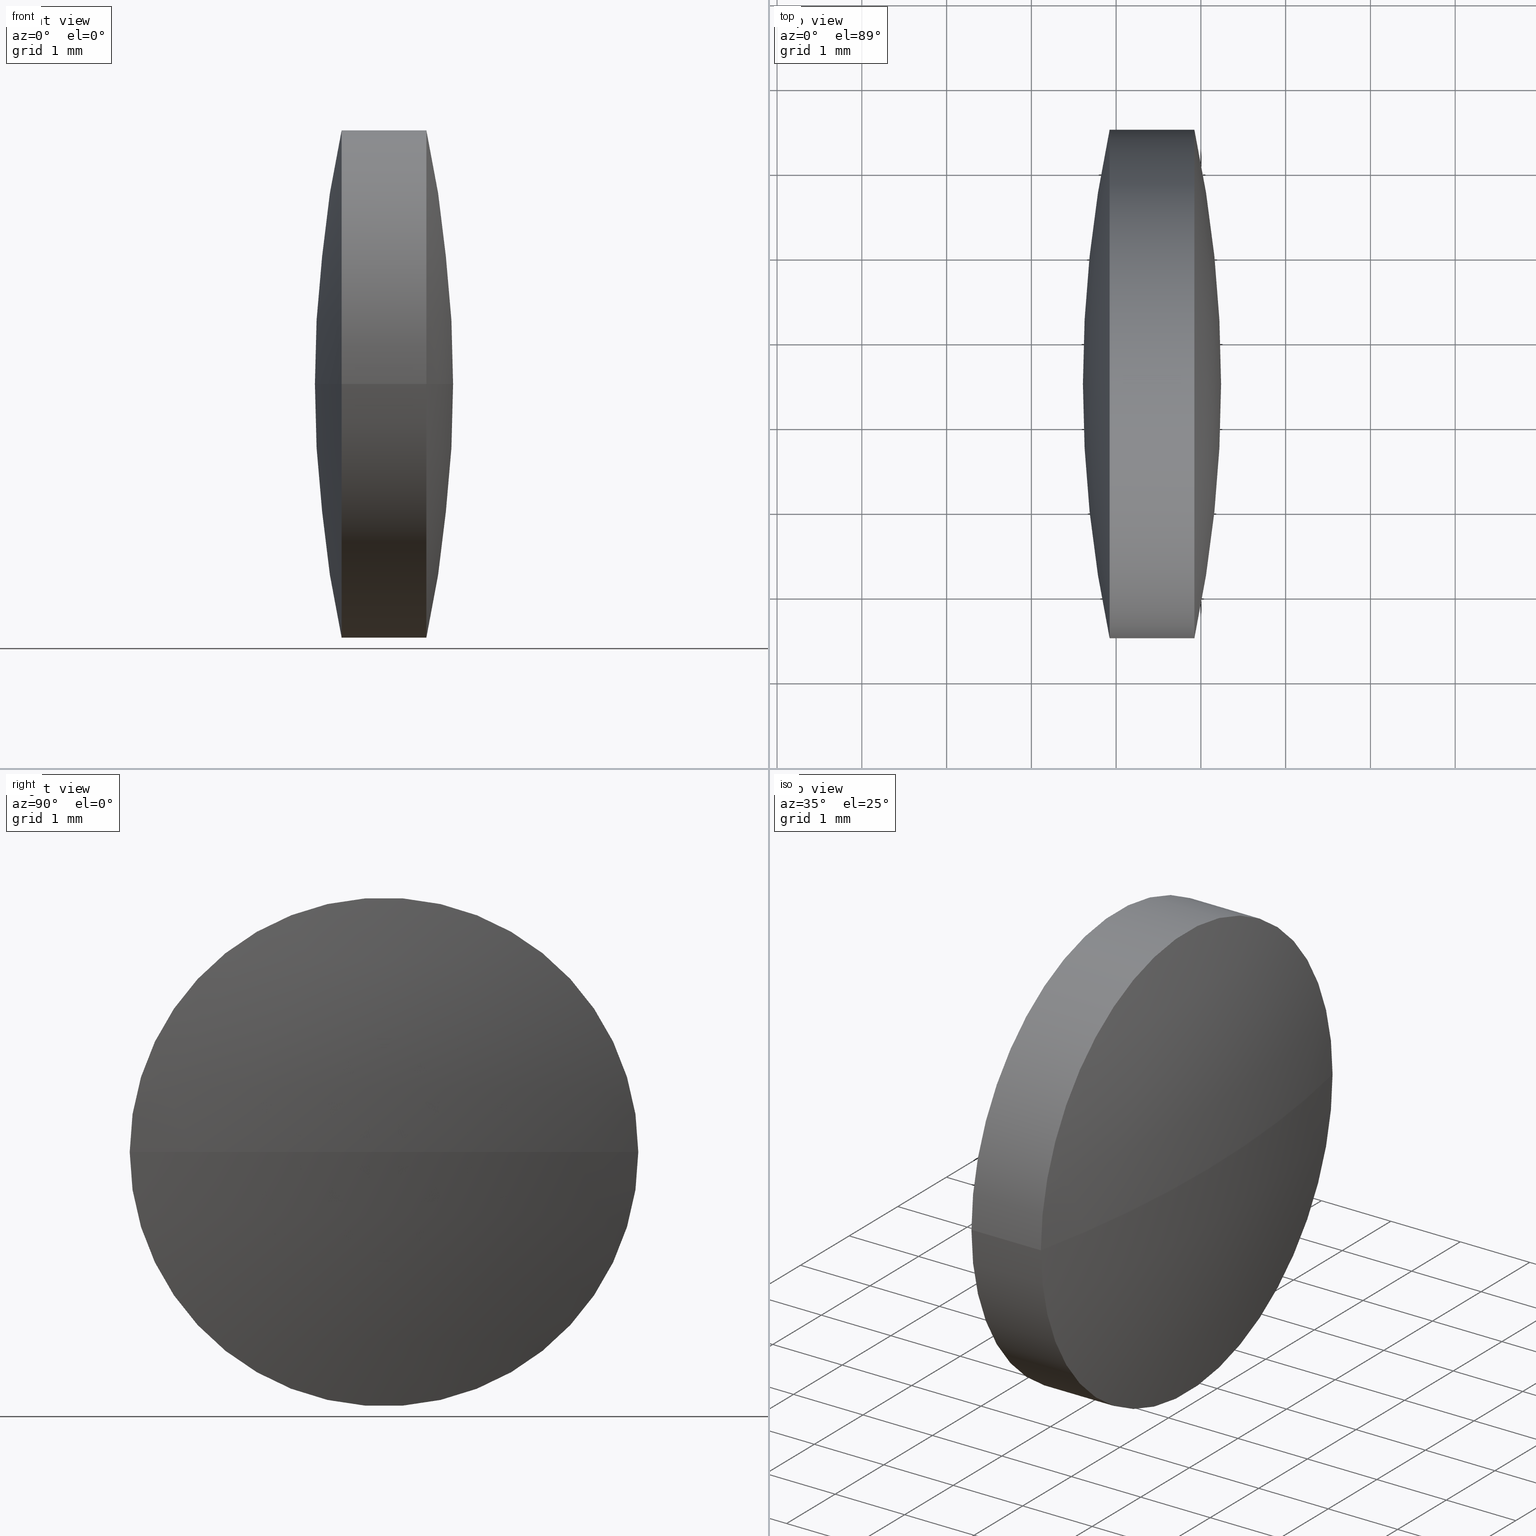
[diagram: canonical four-view strip — front | top / right | iso, engineering-drawing reading convention]
A machine part, canonical four-view strip (front | top / right | iso — engineering-drawing reading convention). The complete STEP part file that produces these views, byte-faithful:
ISO-10303-21;
HEADER;
FILE_DESCRIPTION (( 'STEP AP203' ),
    '1' );
FILE_NAME ('110091.STEP',
    '2019-07-04T02:34:23',
    ( '' ),
    ( '' ),
    'SwSTEP 2.0',
    'SolidWorks 2016',
    '' );
FILE_SCHEMA (( 'CONFIG_CONTROL_DESIGN' ));
ENDSEC;

DATA;
#1 = ORIENTED_EDGE ( 'NONE', *, *, #174, .F. ) ;
#2 = DIRECTION ( 'NONE',  ( 2.402096781192441300E-015, -1.000000000000000000, 0.0000000000000000000 ) ) ;
#3 = EDGE_LOOP ( 'NONE', ( #146, #80, #222 ) ) ;
#4 = PERSON_AND_ORGANIZATION_ROLE ( 'creator' ) ;
#5 = DATE_TIME_ROLE ( 'creation_date' ) ;
#6 = PRODUCT_DEFINITION_FORMATION_WITH_SPECIFIED_SOURCE ( '�κ�', '', #232, .NOT_KNOWN. ) ;
#7 = SPHERICAL_SURFACE ( 'NONE', #13, 14.44341035348024200 ) ;
#8 = EDGE_CURVE ( 'NONE', #186, #206, #25, .T. ) ;
#9 = LOCAL_TIME ( 10, 34, 23.00000000000000000, #294 ) ;
#10 = EDGE_LOOP ( 'NONE', ( #109, #32, #71, #52 ) ) ;
#11 = APPROVAL_STATUS ( 'not_yet_approved' ) ;
#12 = FACE_OUTER_BOUND ( 'NONE', #54, .T. ) ;
#13 = AXIS2_PLACEMENT_3D ( 'NONE', #117, #83, #231 ) ;
#14 = FACE_OUTER_BOUND ( 'NONE', #10, .T. ) ;
#15 = CARTESIAN_POINT ( 'NONE',  ( 6.794780369218582200, 11.48412118657908800, 0.0000000000000000000 ) ) ;
#16 = ADVANCED_FACE ( 'NONE', ( #58 ), #281, .T. ) ;
#17 = DATE_AND_TIME ( #203, #48 ) ;
#18 = APPROVAL_STATUS ( 'not_yet_approved' ) ;
#19 = EDGE_CURVE ( 'NONE', #87, #206, #182, .T. ) ;
#20 = CIRCLE ( 'NONE', #131, 2.999999999999997300 ) ;
#21 = DIRECTION ( 'NONE',  ( 0.0000000000000000000, 0.0000000000000000000, 1.000000000000000000 ) ) ;
#22 = DIRECTION ( 'NONE',  ( 0.0000000000000000000, 1.000000000000000000, 1.224646799147353200E-016 ) ) ;
#23 = AXIS2_PLACEMENT_3D ( 'NONE', #44, #96, #94 ) ;
#24 = LOCAL_TIME ( 10, 34, 23.00000000000000000, #74 ) ;
#25 = CIRCLE ( 'NONE', #101, 14.44341035348010600 ) ;
#26 = APPROVAL_ROLE ( '' ) ;
#27 = COORDINATED_UNIVERSAL_TIME_OFFSET ( 8, 0, .AHEAD. ) ;
#28 = PERSON_AND_ORGANIZATION_ROLE ( 'creator' ) ;
#29 = AXIS2_PLACEMENT_3D ( 'NONE', #84, #62, #90 ) ;
#30 = DESIGN_CONTEXT ( 'detailed design', #214, 'design' ) ;
#31 = PERSON_AND_ORGANIZATION ( #302, #269 ) ;
#32 = ORIENTED_EDGE ( 'NONE', *, *, #50, .T. ) ;
#33 = SECURITY_CLASSIFICATION ( '', '', #262 ) ;
#34 = DIRECTION ( 'NONE',  ( 2.916063966543157700E-031, -1.224646799147353200E-016, 1.000000000000000000 ) ) ;
#35 = LOCAL_TIME ( 10, 34, 23.00000000000000000, #295 ) ;
#36 = ORIENTED_EDGE ( 'NONE', *, *, #223, .T. ) ;
#37 = CARTESIAN_POINT ( 'NONE',  ( 6.794780369218582200, 11.48412118657908800, 0.0000000000000000000 ) ) ;
#38 = APPROVAL ( #147, 'δָ��' ) ;
#39 = CARTESIAN_POINT ( 'NONE',  ( 20.92319509412727300, 8.484121186579120200, 0.0000000000000000000 ) ) ;
#40 = AXIS2_PLACEMENT_3D ( 'NONE', #233, #188, #140 ) ;
#41 = DIRECTION ( 'NONE',  ( -0.0000000000000000000, 0.0000000000000000000, 1.000000000000000000 ) ) ;
#42 = PERSON_AND_ORGANIZATION ( #302, #269 ) ;
#43 = CC_DESIGN_APPROVAL ( #38, ( #33 ) ) ;
#44 = CARTESIAN_POINT ( 'NONE',  ( 19.92319566555584100, 11.48412118657908300, 0.0000000000000000000 ) ) ;
#45 = ADVANCED_BREP_SHAPE_REPRESENTATION ( '110091', ( #277, #72 ), #274 ) ;
#46 = DIRECTION ( 'NONE',  ( 1.000000000000000000, 0.0000000000000000000, 0.0000000000000000000 ) ) ;
#47 = COORDINATED_UNIVERSAL_TIME_OFFSET ( 8, 0, .AHEAD. ) ;
#48 = LOCAL_TIME ( 10, 34, 23.00000000000000000, #82 ) ;
#49 = CARTESIAN_POINT ( 'NONE',  ( 20.92319509412725900, 14.48412118657908800, 3.673940397442015500E-016 ) ) ;
#50 = EDGE_CURVE ( 'NONE', #206, #87, #20, .T. ) ;
#51 = CC_DESIGN_PERSON_AND_ORGANIZATION_ASSIGNMENT ( #298, #221, ( #154 ) ) ;
#52 = ORIENTED_EDGE ( 'NONE', *, *, #230, .F. ) ;
#53 = COORDINATED_UNIVERSAL_TIME_OFFSET ( 8, 0, .AHEAD. ) ;
#54 = EDGE_LOOP ( 'NONE', ( #137, #265, #244 ) ) ;
#55 = ORIENTED_EDGE ( 'NONE', *, *, #289, .F. ) ;
#56 = SECURITY_CLASSIFICATION_LEVEL ( 'unclassified' ) ;
#57 = LOCAL_TIME ( 10, 34, 23.00000000000000000, #47 ) ;
#58 = FACE_OUTER_BOUND ( 'NONE', #100, .T. ) ;
#59 = ADVANCED_FACE ( 'NONE', ( #219 ), #273, .T. ) ;
#60 = CARTESIAN_POINT ( 'NONE',  ( 6.794780369218582200, 11.48412118657908800, 0.0000000000000000000 ) ) ;
#61 = PERSON_AND_ORGANIZATION ( #302, #269 ) ;
#62 = DIRECTION ( 'NONE',  ( -1.000000000000000000, -2.381146930342230200E-015, -0.0000000000000000000 ) ) ;
#63 = DIRECTION ( 'NONE',  ( -0.0000000000000000000, 0.0000000000000000000, 1.000000000000000000 ) ) ;
#64 = CC_DESIGN_DATE_AND_TIME_ASSIGNMENT ( #270, #198, ( #154 ) ) ;
#65 = CARTESIAN_POINT ( 'NONE',  ( 34.05161039046465300, 11.48412118657908600, 0.0000000000000000000 ) ) ;
#66 = APPROVAL ( #279, 'δָ��' ) ;
#67 = CALENDAR_DATE ( 2019, 4, 7 ) ;
#68 = APPLICATION_PROTOCOL_DEFINITION ( 'international standard', 'config_control_design', 1994, #214 ) ;
#69 =( LENGTH_UNIT ( ) NAMED_UNIT ( * ) SI_UNIT ( .MILLI., .METRE. ) );
#70 = FACE_OUTER_BOUND ( 'NONE', #250, .T. ) ;
#71 = ORIENTED_EDGE ( 'NONE', *, *, #289, .T. ) ;
#72 = AXIS2_PLACEMENT_3D ( 'NONE', #144, #21, #46 ) ;
#73 = APPROVAL_ROLE ( '' ) ;
#74 = COORDINATED_UNIVERSAL_TIME_OFFSET ( 8, 0, .AHEAD. ) ;
#75 = APPLICATION_PROTOCOL_DEFINITION ( 'international standard', 'config_control_design', 1994, #77 ) ;
#76 = PERSON_AND_ORGANIZATION ( #302, #269 ) ;
#77 = APPLICATION_CONTEXT ( 'configuration controlled 3d designs of mechanical parts and assemblies' ) ;
#78 = APPROVAL ( #197, 'δָ��' ) ;
#79 = FACE_OUTER_BOUND ( 'NONE', #3, .T. ) ;
#80 = ORIENTED_EDGE ( 'NONE', *, *, #174, .T. ) ;
#81 = COORDINATED_UNIVERSAL_TIME_OFFSET ( 8, 0, .AHEAD. ) ;
#82 = COORDINATED_UNIVERSAL_TIME_OFFSET ( 8, 0, .AHEAD. ) ;
#83 = DIRECTION ( 'NONE',  ( -0.0000000000000000000, 0.0000000000000000000, -1.000000000000000000 ) ) ;
#84 = CARTESIAN_POINT ( 'NONE',  ( 19.32237368753928700, 11.48412118657908100, 0.0000000000000000000 ) ) ;
#85 = DIRECTION ( 'NONE',  ( -1.000000000000000000, -2.381146930342230200E-015, -0.0000000000000000000 ) ) ;
#86 = COORDINATED_UNIVERSAL_TIME_OFFSET ( 8, 0, .AHEAD. ) ;
#87 = VERTEX_POINT ( 'NONE', #39 ) ;
#88 = CARTESIAN_POINT ( 'NONE',  ( 19.32237368753928000, 14.48412118657908100, 3.673940397442057900E-016 ) ) ;
#89 = PERSON_AND_ORGANIZATION_ROLE ( 'classification_officer' ) ;
#90 = DIRECTION ( 'NONE',  ( 2.312964634635743400E-015, -1.000000000000000000, 0.0000000000000000000 ) ) ;
#91 = CC_DESIGN_PERSON_AND_ORGANIZATION_ASSIGNMENT ( #142, #95, ( #260 ) ) ;
#92 = DATE_AND_TIME ( #172, #57 ) ;
#93 = CARTESIAN_POINT ( 'NONE',  ( 19.32237368753929400, 8.484121186579082900, 0.0000000000000000000 ) ) ;
#94 = DIRECTION ( 'NONE',  ( 2.312964634635743400E-015, -1.000000000000000000, 0.0000000000000000000 ) ) ;
#95 = PERSON_AND_ORGANIZATION_ROLE ( 'creator' ) ;
#96 = DIRECTION ( 'NONE',  ( -1.000000000000000000, -2.381146930342230200E-015, -0.0000000000000000000 ) ) ;
#97 = PRODUCT_DEFINITION_SHAPE ( 'NONE', 'NONE',  #179 ) ;
#98 = DATE_AND_TIME ( #246, #267 ) ;
#99 = VECTOR ( 'NONE', #171, 1000.000000000000000 ) ;
#100 = EDGE_LOOP ( 'NONE', ( #104, #191, #275 ) ) ;
#101 = AXIS2_PLACEMENT_3D ( 'NONE', #15, #34, #303 ) ;
#102 = PRODUCT_RELATED_PRODUCT_CATEGORY ( 'detail', '', ( #278 ) ) ;
#103 = APPROVAL_DATE_TIME ( #286, #78 ) ;
#104 = ORIENTED_EDGE ( 'NONE', *, *, #8, .F. ) ;
#105 = EDGE_CURVE ( 'NONE', #206, #301, #249, .T. ) ;
#106 = APPROVAL_STATUS ( 'not_yet_approved' ) ;
#107 = PERSON_AND_ORGANIZATION ( #302, #269 ) ;
#108 = APPROVAL_DATE_TIME ( #17, #66 ) ;
#109 = ORIENTED_EDGE ( 'NONE', *, *, #105, .F. ) ;
#110 = COORDINATED_UNIVERSAL_TIME_OFFSET ( 8, 0, .AHEAD. ) ;
#111 = CC_DESIGN_DATE_AND_TIME_ASSIGNMENT ( #196, #5, ( #260 ) ) ;
#112 = CALENDAR_DATE ( 2019, 4, 7 ) ;
#113 = UNCERTAINTY_MEASURE_WITH_UNIT (LENGTH_MEASURE( 1.000000000000000100E-005 ), #69, 'distance_accuracy_value', 'NONE');
#114 = CC_DESIGN_DATE_AND_TIME_ASSIGNMENT ( #92, #243, ( #179 ) ) ;
#115 = ADVANCED_FACE ( 'NONE', ( #79 ), #7, .T. ) ;
#116 = AXIS2_PLACEMENT_3D ( 'NONE', #65, #209, #189 ) ;
#117 = CARTESIAN_POINT ( 'NONE',  ( 34.05161039046465300, 11.48412118657908600, 0.0000000000000000000 ) ) ;
#118 = APPROVAL_DATE_TIME ( #127, #126 ) ;
#119 = VERTEX_POINT ( 'NONE', #226 ) ;
#120 =( NAMED_UNIT ( * ) SI_UNIT ( $, .STERADIAN. ) SOLID_ANGLE_UNIT ( ) );
#121 = EDGE_CURVE ( 'NONE', #186, #87, #175, .T. ) ;
#122 = CARTESIAN_POINT ( 'NONE',  ( 19.92319566555583400, 14.48412118657908500, 0.0000000000000000000 ) ) ;
#123 = APPROVAL_DATE_TIME ( #98, #38 ) ;
#124 = SPHERICAL_SURFACE ( 'NONE', #207, 14.44341035348024200 ) ;
#125 = DIRECTION ( 'NONE',  ( -2.402096781192418800E-015, 1.000000000000000000, 0.0000000000000000000 ) ) ;
#126 = APPROVAL ( #106, 'δָ��' ) ;
#127 = DATE_AND_TIME ( #297, #185 ) ;
#128 = APPROVAL ( #18, 'δָ��' ) ;
#129 = CALENDAR_DATE ( 2019, 4, 7 ) ;
#130 = CC_DESIGN_PERSON_AND_ORGANIZATION_ASSIGNMENT ( #164, #199, ( #148 ) ) ;
#131 = AXIS2_PLACEMENT_3D ( 'NONE', #253, #161, #224 ) ;
#132 = CIRCLE ( 'NONE', #116, 14.44341035348024200 ) ;
#133 = ADVANCED_FACE ( 'NONE', ( #14 ), #205, .T. ) ;
#134 = DIRECTION ( 'NONE',  ( -1.000000000000000000, 0.0000000000000000000, 0.0000000000000000000 ) ) ;
#135 = LOCAL_TIME ( 10, 34, 23.00000000000000000, #86 ) ;
#136 = CC_DESIGN_SECURITY_CLASSIFICATION ( #154, ( #148 ) ) ;
#137 = ORIENTED_EDGE ( 'NONE', *, *, #121, .F. ) ;
#138 = AXIS2_PLACEMENT_3D ( 'NONE', #252, #254, #184 ) ;
#139 = DIRECTION ( 'NONE',  ( 1.000000000000000000, 0.0000000000000000000, 0.0000000000000000000 ) ) ;
#140 = DIRECTION ( 'NONE',  ( 2.312964634635743400E-015, -1.000000000000000000, 0.0000000000000000000 ) ) ;
#141 = APPROVAL_DATE_TIME ( #202, #256 ) ;
#142 = PERSON_AND_ORGANIZATION ( #302, #269 ) ;
#143 = PERSON_AND_ORGANIZATION_ROLE ( 'design_owner' ) ;
#144 = CARTESIAN_POINT ( 'NONE',  ( 0.0000000000000000000, 0.0000000000000000000, 0.0000000000000000000 ) ) ;
#145 = CIRCLE ( 'NONE', #177, 14.44341035348024100 ) ;
#146 = ORIENTED_EDGE ( 'NONE', *, *, #230, .T. ) ;
#147 = APPROVAL_STATUS ( 'not_yet_approved' ) ;
#148 = PRODUCT_DEFINITION_FORMATION_WITH_SPECIFIED_SOURCE ( '�κ�', '', #278, .NOT_KNOWN. ) ;
#149 = PERSON_AND_ORGANIZATION ( #302, #269 ) ;
#150 = APPROVAL_PERSON_ORGANIZATION ( #227, #66, #237 ) ;
#151 = AXIS2_PLACEMENT_3D ( 'NONE', #187, #41, #2 ) ;
#152 = MECHANICAL_CONTEXT ( 'NONE', #213, 'mechanical' ) ;
#153 = ORIENTED_EDGE ( 'NONE', *, *, #234, .T. ) ;
#154 = SECURITY_CLASSIFICATION ( '', '', #56 ) ;
#155 = LOCAL_TIME ( 10, 34, 23.00000000000000000, #27 ) ;
#156 = SHAPE_DEFINITION_REPRESENTATION ( #97, #45 ) ;
#157 = ADVANCED_FACE ( 'NONE', ( #12 ), #255, .T. ) ;
#158 = DIRECTION ( 'NONE',  ( 2.402096781192441300E-015, -1.000000000000000000, 0.0000000000000000000 ) ) ;
#159 = APPROVAL_DATE_TIME ( #220, #128 ) ;
#160 = ORIENTED_EDGE ( 'NONE', *, *, #19, .T. ) ;
#161 = DIRECTION ( 'NONE',  ( -1.000000000000000000, -2.381146930342230200E-015, -0.0000000000000000000 ) ) ;
#162 = AXIS2_PLACEMENT_3D ( 'NONE', #236, #283, #139 ) ;
#163 = DIRECTION ( 'NONE',  ( 2.312964634635745000E-015, -1.000000000000000000, 0.0000000000000000000 ) ) ;
#164 = PERSON_AND_ORGANIZATION ( #302, #269 ) ;
#165 = CC_DESIGN_SECURITY_CLASSIFICATION ( #33, ( #6 ) ) ;
#166 = DIRECTION ( 'NONE',  ( -2.916063966543157700E-031, 1.224646799147353200E-016, -1.000000000000000000 ) ) ;
#167 = CARTESIAN_POINT ( 'NONE',  ( 19.60820003698440700, 11.48412118657905400, 0.0000000000000000000 ) ) ;
#168 = DIRECTION ( 'NONE',  ( -0.0000000000000000000, 0.0000000000000000000, -1.000000000000000000 ) ) ;
#169 = APPROVAL_PERSON_ORGANIZATION ( #181, #38, #264 ) ;
#170 = LINE ( 'NONE', #93, #99 ) ;
#171 = DIRECTION ( 'NONE',  ( -1.000000000000000000, -2.381146930342230200E-015, -0.0000000000000000000 ) ) ;
#172 = CALENDAR_DATE ( 2019, 4, 7 ) ;
#173 = EDGE_LOOP ( 'NONE', ( #160, #239, #216, #55 ) ) ;
#174 = EDGE_CURVE ( 'NONE', #119, #229, #145, .T. ) ;
#175 = CIRCLE ( 'NONE', #245, 14.44341035348010600 ) ;
#176 = CC_DESIGN_PERSON_AND_ORGANIZATION_ASSIGNMENT ( #31, #290, ( #148 ) ) ;
#177 = AXIS2_PLACEMENT_3D ( 'NONE', #190, #166, #22 ) ;
#178 = CALENDAR_DATE ( 2019, 4, 7 ) ;
#179 = PRODUCT_DEFINITION ( 'δ֪', '', #148, #228 ) ;
#180 = CC_DESIGN_PERSON_AND_ORGANIZATION_ASSIGNMENT ( #61, #143, ( #232 ) ) ;
#181 = PERSON_AND_ORGANIZATION ( #302, #269 ) ;
#182 = CIRCLE ( 'NONE', #305, 2.999999999999997300 ) ;
#183 = CARTESIAN_POINT ( 'NONE',  ( 20.92319509412726600, 11.48412118657908500, 0.0000000000000000000 ) ) ;
#184 = DIRECTION ( 'NONE',  ( 2.312964634635743400E-015, -1.000000000000000000, 0.0000000000000000000 ) ) ;
#185 = LOCAL_TIME ( 10, 34, 23.00000000000000000, #53 ) ;
#186 = VERTEX_POINT ( 'NONE', #299 ) ;
#187 = CARTESIAN_POINT ( 'NONE',  ( 6.794780369218582200, 11.48412118657908800, 0.0000000000000000000 ) ) ;
#188 = DIRECTION ( 'NONE',  ( -1.000000000000000000, -2.381146930342230200E-015, -0.0000000000000000000 ) ) ;
#189 = DIRECTION ( 'NONE',  ( 1.000000000000000000, 0.0000000000000000000, 0.0000000000000000000 ) ) ;
#190 = CARTESIAN_POINT ( 'NONE',  ( 34.05161039046465300, 11.48412118657908600, 0.0000000000000000000 ) ) ;
#191 = ORIENTED_EDGE ( 'NONE', *, *, #121, .T. ) ;
#192 =( NAMED_UNIT ( * ) PLANE_ANGLE_UNIT ( ) SI_UNIT ( $, .RADIAN. ) );
#193 = APPLICATION_PROTOCOL_DEFINITION ( 'international standard', 'config_control_design', 1994, #213 ) ;
#194 = CC_DESIGN_APPROVAL ( #126, ( #154 ) ) ;
#195 = PERSON_AND_ORGANIZATION ( #302, #269 ) ;
#196 = DATE_AND_TIME ( #129, #135 ) ;
#197 = APPROVAL_STATUS ( 'not_yet_approved' ) ;
#198 = DATE_TIME_ROLE ( 'classification_date' ) ;
#199 = PERSON_AND_ORGANIZATION_ROLE ( 'design_supplier' ) ;
#200 = CLOSED_SHELL ( 'NONE', ( #59, #157, #115, #204, #16, #133 ) ) ;
#201 = CC_DESIGN_PERSON_AND_ORGANIZATION_ASSIGNMENT ( #149, #4, ( #6 ) ) ;
#202 = DATE_AND_TIME ( #178, #9 ) ;
#203 = CALENDAR_DATE ( 2019, 4, 7 ) ;
#204 = ADVANCED_FACE ( 'NONE', ( #70 ), #124, .T. ) ;
#205 = CYLINDRICAL_SURFACE ( 'NONE', #29, 2.999999999999999100 ) ;
#206 = VERTEX_POINT ( 'NONE', #49 ) ;
#207 = AXIS2_PLACEMENT_3D ( 'NONE', #288, #168, #125 ) ;
#208 = DIRECTION ( 'NONE',  ( -1.000000000000000000, -2.381146930342230200E-015, -0.0000000000000000000 ) ) ;
#209 = DIRECTION ( 'NONE',  ( -0.0000000000000000000, 0.0000000000000000000, 1.000000000000000000 ) ) ;
#210 = CC_DESIGN_DATE_AND_TIME_ASSIGNMENT ( #242, #235, ( #33 ) ) ;
#211 = PERSON_AND_ORGANIZATION ( #302, #269 ) ;
#212 = PERSON_AND_ORGANIZATION ( #302, #269 ) ;
#213 = APPLICATION_CONTEXT ( 'configuration controlled 3d designs of mechanical parts and assemblies' ) ;
#214 = APPLICATION_CONTEXT ( 'configuration controlled 3d designs of mechanical parts and assemblies' ) ;
#215 = CIRCLE ( 'NONE', #23, 2.999999999999999100 ) ;
#216 = ORIENTED_EDGE ( 'NONE', *, *, #234, .F. ) ;
#217 = LOCAL_TIME ( 10, 34, 23.00000000000000000, #110 ) ;
#218 = CC_DESIGN_PERSON_AND_ORGANIZATION_ASSIGNMENT ( #211, #240, ( #6 ) ) ;
#219 = FACE_OUTER_BOUND ( 'NONE', #173, .T. ) ;
#220 = DATE_AND_TIME ( #287, #35 ) ;
#221 = PERSON_AND_ORGANIZATION_ROLE ( 'classification_officer' ) ;
#222 = ORIENTED_EDGE ( 'NONE', *, *, #223, .F. ) ;
#223 = EDGE_CURVE ( 'NONE', #301, #229, #132, .T. ) ;
#224 = DIRECTION ( 'NONE',  ( 2.312964634635745000E-015, -1.000000000000000000, 0.0000000000000000000 ) ) ;
#225 = CALENDAR_DATE ( 2019, 4, 7 ) ;
#226 = CARTESIAN_POINT ( 'NONE',  ( 19.92319566555585200, 8.484121186579050900, -3.673940397442060400E-016 ) ) ;
#227 = PERSON_AND_ORGANIZATION ( #302, #269 ) ;
#228 = DESIGN_CONTEXT ( 'detailed design', #77, 'design' ) ;
#229 = VERTEX_POINT ( 'NONE', #167 ) ;
#230 = EDGE_CURVE ( 'NONE', #301, #119, #215, .T. ) ;
#231 = DIRECTION ( 'NONE',  ( -2.402096781192418800E-015, 1.000000000000000000, 0.0000000000000000000 ) ) ;
#232 = PRODUCT ( '110091', '110091', '', ( #284 ) ) ;
#233 = CARTESIAN_POINT ( 'NONE',  ( 19.92319566555584100, 11.48412118657908300, 0.0000000000000000000 ) ) ;
#234 = EDGE_CURVE ( 'NONE', #119, #301, #238, .T. ) ;
#235 = DATE_TIME_ROLE ( 'classification_date' ) ;
#236 = CARTESIAN_POINT ( 'NONE',  ( 0.0000000000000000000, 0.0000000000000000000, 0.0000000000000000000 ) ) ;
#237 = APPROVAL_ROLE ( '' ) ;
#238 = CIRCLE ( 'NONE', #40, 2.999999999999999100 ) ;
#239 = ORIENTED_EDGE ( 'NONE', *, *, #105, .T. ) ;
#240 = PERSON_AND_ORGANIZATION_ROLE ( 'design_supplier' ) ;
#241 = PERSON_AND_ORGANIZATION ( #302, #269 ) ;
#242 = DATE_AND_TIME ( #67, #217 ) ;
#243 = DATE_TIME_ROLE ( 'creation_date' ) ;
#244 = ORIENTED_EDGE ( 'NONE', *, *, #19, .F. ) ;
#245 = AXIS2_PLACEMENT_3D ( 'NONE', #60, #251, #134 ) ;
#246 = CALENDAR_DATE ( 2019, 4, 7 ) ;
#247 = PRODUCT_RELATED_PRODUCT_CATEGORY ( 'detail', '', ( #232 ) ) ;
#248 = CC_DESIGN_PERSON_AND_ORGANIZATION_ASSIGNMENT ( #212, #268, ( #278 ) ) ;
#249 = LINE ( 'NONE', #88, #300 ) ;
#250 = EDGE_LOOP ( 'NONE', ( #1, #153, #36 ) ) ;
#251 = DIRECTION ( 'NONE',  ( 0.0000000000000000000, 0.0000000000000000000, -1.000000000000000000 ) ) ;
#252 = CARTESIAN_POINT ( 'NONE',  ( 19.32237368753928700, 11.48412118657908100, 0.0000000000000000000 ) ) ;
#253 = CARTESIAN_POINT ( 'NONE',  ( 20.92319509412726600, 11.48412118657908500, 0.0000000000000000000 ) ) ;
#254 = DIRECTION ( 'NONE',  ( -1.000000000000000000, -2.381146930342230200E-015, -0.0000000000000000000 ) ) ;
#255 = SPHERICAL_SURFACE ( 'NONE', #151, 14.44341035348010600 ) ;
#256 = APPROVAL ( #11, 'δָ��' ) ;
#257 = APPROVAL_PERSON_ORGANIZATION ( #280, #78, #26 ) ;
#258 = APPROVAL_PERSON_ORGANIZATION ( #76, #128, #261 ) ;
#259 = APPLICATION_CONTEXT ( 'configuration controlled 3d designs of mechanical parts and assemblies' ) ;
#260 = PRODUCT_DEFINITION ( 'δ֪', '', #6, #30 ) ;
#261 = APPROVAL_ROLE ( '' ) ;
#262 = SECURITY_CLASSIFICATION_LEVEL ( 'unclassified' ) ;
#263 = AXIS2_PLACEMENT_3D ( 'NONE', #37, #63, #158 ) ;
#264 = APPROVAL_ROLE ( '' ) ;
#265 = ORIENTED_EDGE ( 'NONE', *, *, #8, .T. ) ;
#266 = CC_DESIGN_APPROVAL ( #256, ( #148 ) ) ;
#267 = LOCAL_TIME ( 10, 34, 23.00000000000000000, #81 ) ;
#268 = PERSON_AND_ORGANIZATION_ROLE ( 'design_owner' ) ;
#269 = ORGANIZATION ( 'δָ��', 'δָ��', '' ) ;
#270 = DATE_AND_TIME ( #225, #24 ) ;
#271 = CC_DESIGN_PERSON_AND_ORGANIZATION_ASSIGNMENT ( #195, #89, ( #33 ) ) ;
#272 = APPROVAL_PERSON_ORGANIZATION ( #107, #126, #73 ) ;
#273 = CYLINDRICAL_SURFACE ( 'NONE', #138, 2.999999999999999100 ) ;
#274 =( GEOMETRIC_REPRESENTATION_CONTEXT ( 3 ) GLOBAL_UNCERTAINTY_ASSIGNED_CONTEXT ( ( #113 ) ) GLOBAL_UNIT_ASSIGNED_CONTEXT ( ( #69, #192, #120 ) ) REPRESENTATION_CONTEXT ( 'NONE', 'WORKASPACE' ) );
#275 = ORIENTED_EDGE ( 'NONE', *, *, #50, .F. ) ;
#276 = PRODUCT_DEFINITION_SHAPE ( 'NONE', 'NONE',  #260 ) ;
#277 = MANIFOLD_SOLID_BREP ( '��ת1', #200 ) ;
#278 = PRODUCT ( '110091', '110091', '', ( #152 ) ) ;
#279 = APPROVAL_STATUS ( 'not_yet_approved' ) ;
#280 = PERSON_AND_ORGANIZATION ( #302, #269 ) ;
#281 = SPHERICAL_SURFACE ( 'NONE', #263, 14.44341035348010600 ) ;
#282 = CC_DESIGN_APPROVAL ( #128, ( #6 ) ) ;
#283 = DIRECTION ( 'NONE',  ( 0.0000000000000000000, 0.0000000000000000000, 1.000000000000000000 ) ) ;
#284 = MECHANICAL_CONTEXT ( 'NONE', #259, 'mechanical' ) ;
#285 = APPLICATION_PROTOCOL_DEFINITION ( 'international standard', 'config_control_design', 1994, #259 ) ;
#286 = DATE_AND_TIME ( #112, #155 ) ;
#287 = CALENDAR_DATE ( 2019, 4, 7 ) ;
#288 = CARTESIAN_POINT ( 'NONE',  ( 34.05161039046465300, 11.48412118657908600, 0.0000000000000000000 ) ) ;
#289 = EDGE_CURVE ( 'NONE', #87, #119, #170, .T. ) ;
#290 = PERSON_AND_ORGANIZATION_ROLE ( 'creator' ) ;
#291 = CC_DESIGN_PERSON_AND_ORGANIZATION_ASSIGNMENT ( #241, #28, ( #179 ) ) ;
#292 = CC_DESIGN_APPROVAL ( #78, ( #179 ) ) ;
#293 = APPROVAL_ROLE ( '' ) ;
#294 = COORDINATED_UNIVERSAL_TIME_OFFSET ( 8, 0, .AHEAD. ) ;
#295 = COORDINATED_UNIVERSAL_TIME_OFFSET ( 8, 0, .AHEAD. ) ;
#296 = CC_DESIGN_APPROVAL ( #66, ( #260 ) ) ;
#297 = CALENDAR_DATE ( 2019, 4, 7 ) ;
#298 = PERSON_AND_ORGANIZATION ( #302, #269 ) ;
#299 = CARTESIAN_POINT ( 'NONE',  ( 21.23819072269869000, 11.48412118657912200, 0.0000000000000000000 ) ) ;
#300 = VECTOR ( 'NONE', #208, 1000.000000000000000 ) ;
#301 = VERTEX_POINT ( 'NONE', #122 ) ;
#302 = PERSON ( 'δָ��', 'δָ��', 'δָ��', ('δָ��'), ('δָ��'), ('δָ��') ) ;
#303 = DIRECTION ( 'NONE',  ( 0.0000000000000000000, -1.000000000000000000, -1.224646799147353200E-016 ) ) ;
#304 = APPROVAL_PERSON_ORGANIZATION ( #42, #256, #293 ) ;
#305 = AXIS2_PLACEMENT_3D ( 'NONE', #183, #85, #163 ) ;
ENDSEC;
END-ISO-10303-21;
